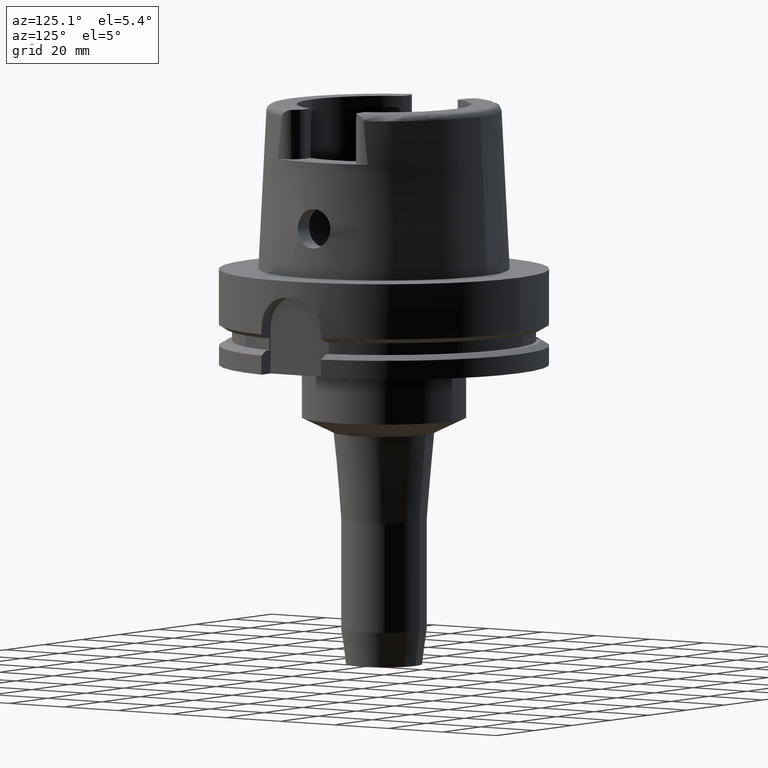
[diagram: clean part render]
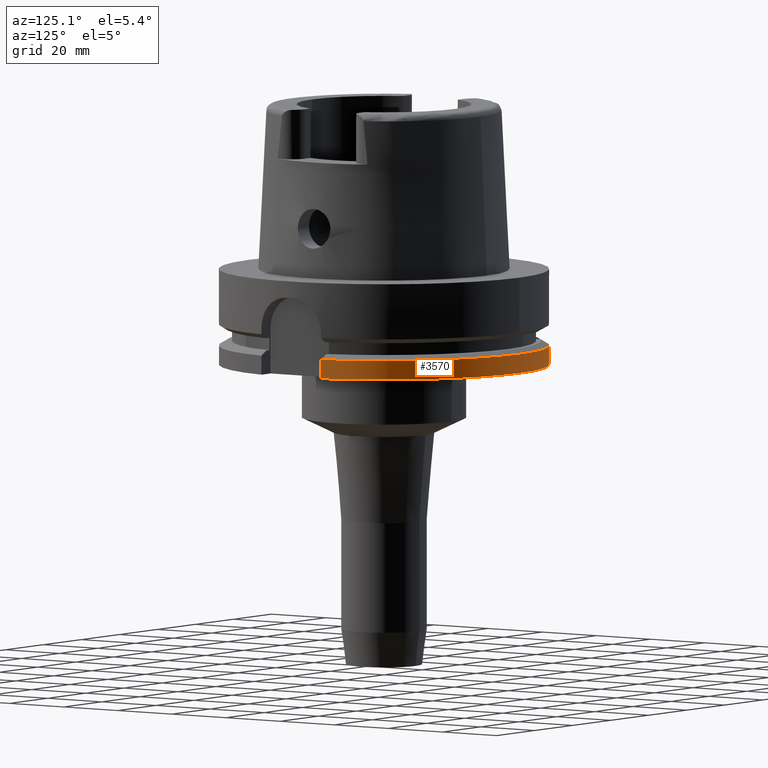
[diagram: same view with one face highlighted and labeled with its STEP entity id]
A machine part, auxiliary view. The second image highlights one B-rep face of the part: STEP entity #3570.
In plain terms, the highlighted cylindrical surface (partial cylindrical patch) has radius 50 mm, axis along (0, 0, 1).
Its self-contained STEP definition (entity closure, byte-faithful):
#1274=CARTESIAN_POINT('',(0.E0,0.E0,-2.9E1));
#1275=DIRECTION('',(0.E0,0.E0,1.E0));
#1276=DIRECTION('',(9.754998718606E-1,2.2E-1,0.E0));
#1277=AXIS2_PLACEMENT_3D('',#1274,#1275,#1276);
#1282=CARTESIAN_POINT('',(0.E0,0.E0,-2.9E1));
#1283=DIRECTION('',(0.E0,0.E0,1.E0));
#1284=DIRECTION('',(0.E0,1.E0,0.E0));
#1285=AXIS2_PLACEMENT_3D('',#1282,#1283,#1284);
#1338=DIRECTION('',(6.188494047475E-7,5.020316378014E-7,-9.999999999997E-1));
#1339=VECTOR('',#1338,5.752391791881E0);
#1340=CARTESIAN_POINT('',(-3.150000355986E1,3.882975374283E1,
-2.324760820812E1));
#1341=LINE('',#1340,#1339);
#1345=DIRECTION('',(-8.399427413532E-14,-2.068976605539E-14,1.E0));
#1346=VECTOR('',#1345,5.752404735809E0);
#1347=CARTESIAN_POINT('',(4.877499359303E1,1.1E1,-2.9E1));
#1348=LINE('',#1347,#1346);
#1717=CARTESIAN_POINT('',(0.E0,0.E0,-2.324759526419E1));
#1718=DIRECTION('',(0.E0,0.E0,-1.E0));
#1719=DIRECTION('',(-6.3E-1,7.765951326142E-1,0.E0));
#1720=AXIS2_PLACEMENT_3D('',#1717,#1718,#1719);
#1725=CARTESIAN_POINT('',(0.E0,0.E0,-2.324759526419E1));
#1726=DIRECTION('',(0.E0,0.E0,-1.E0));
#1727=DIRECTION('',(0.E0,1.E0,0.E0));
#1728=AXIS2_PLACEMENT_3D('',#1725,#1726,#1727);
#2435=CARTESIAN_POINT('',(-3.15E1,3.882975663071E1,-2.9E1));
#2437=VERTEX_POINT('',#2435);
#2456=CARTESIAN_POINT('',(4.877499359303E1,1.1E1,-2.9E1));
#2457=VERTEX_POINT('',#2456);
#2458=CARTESIAN_POINT('',(-6.019535474874E-14,5.E1,-2.9E1));
#2459=VERTEX_POINT('',#2458);
#2460=CARTESIAN_POINT('',(-3.150000355986E1,3.882975374283E1,
-2.324760820812E1));
#2461=VERTEX_POINT('',#2460);
#2480=CARTESIAN_POINT('',(4.877499359303E1,1.1E1,-2.324759526419E1));
#2481=VERTEX_POINT('',#2480);
#2482=CARTESIAN_POINT('',(0.E0,5.E1,-2.324759526419E1));
#2483=VERTEX_POINT('',#2482);
#3554=CARTESIAN_POINT('',(0.E0,0.E0,-1.285E2));
#3555=DIRECTION('',(0.E0,0.E0,1.E0));
#3556=DIRECTION('',(0.E0,1.E0,0.E0));
#3557=AXIS2_PLACEMENT_3D('',#3554,#3555,#3556);
#3558=CYLINDRICAL_SURFACE('',#3557,5.E1);
#3559=ORIENTED_EDGE('',*,*,#3533,.T.);
#3560=ORIENTED_EDGE('',*,*,#3518,.F.);
#3561=ORIENTED_EDGE('',*,*,#3516,.F.);
#3563=ORIENTED_EDGE('',*,*,#3562,.T.);
#3565=ORIENTED_EDGE('',*,*,#3564,.F.);
#3567=ORIENTED_EDGE('',*,*,#3566,.F.);
#3568=EDGE_LOOP('',(#3559,#3560,#3561,#3563,#3565,#3567));
#3569=FACE_OUTER_BOUND('',#3568,.F.);
#1278=CIRCLE('',#1277,5.E1);
#1286=CIRCLE('',#1285,5.E1);
#1721=CIRCLE('',#1720,5.E1);
#1729=CIRCLE('',#1728,5.E1);
#3516=EDGE_CURVE('',#2457,#2459,#1278,.T.);
#3518=EDGE_CURVE('',#2459,#2437,#1286,.T.);
#3533=EDGE_CURVE('',#2461,#2437,#1341,.T.);
#3562=EDGE_CURVE('',#2457,#2481,#1348,.T.);
#3564=EDGE_CURVE('',#2483,#2481,#1729,.T.);
#3566=EDGE_CURVE('',#2461,#2483,#1721,.T.);
#3570=ADVANCED_FACE('',(#3569),#3558,.T.);